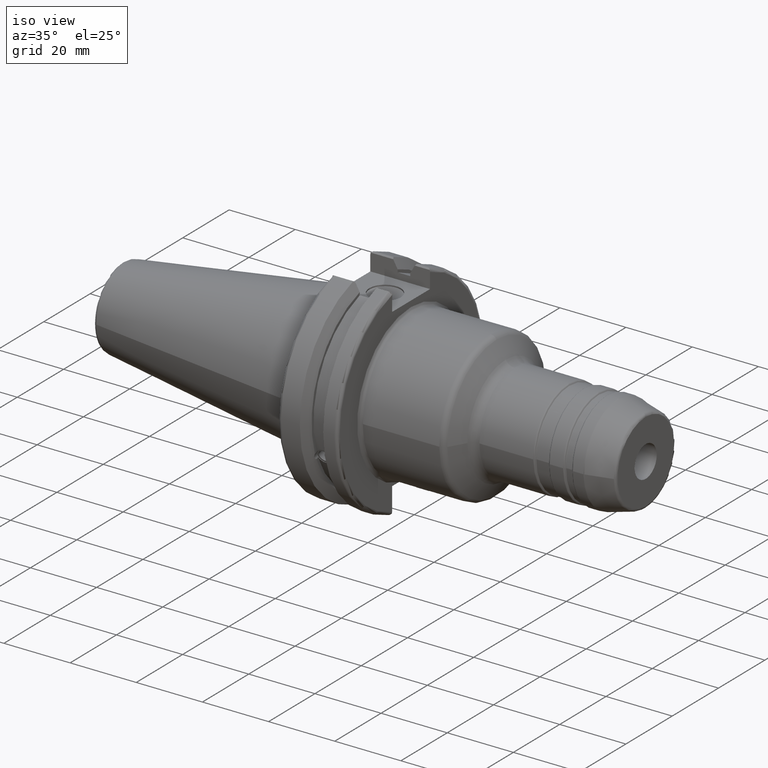
[diagram: clean part render]
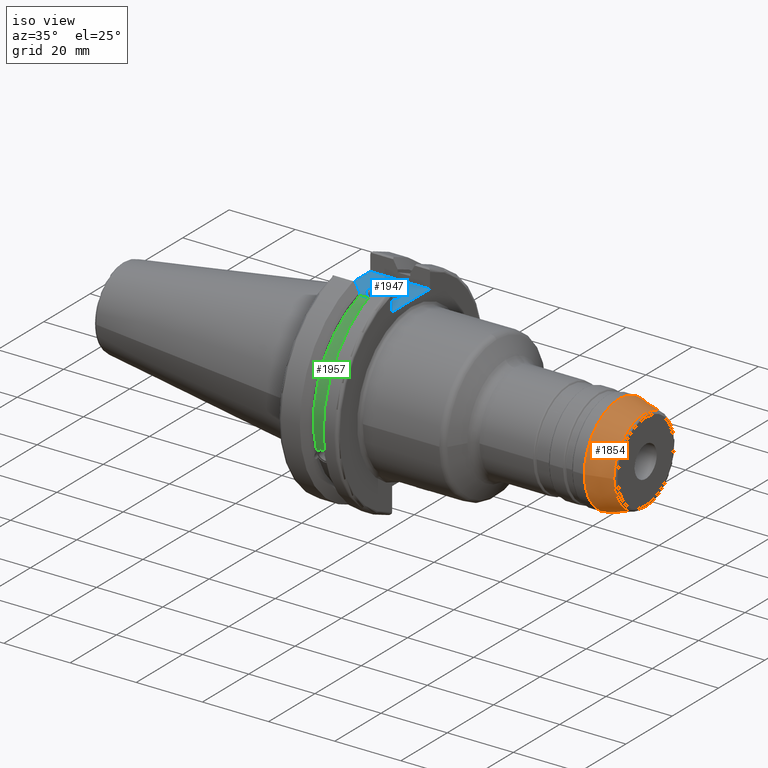
[diagram: same view with three faces highlighted in distinct colors, each labeled with its STEP entity id]
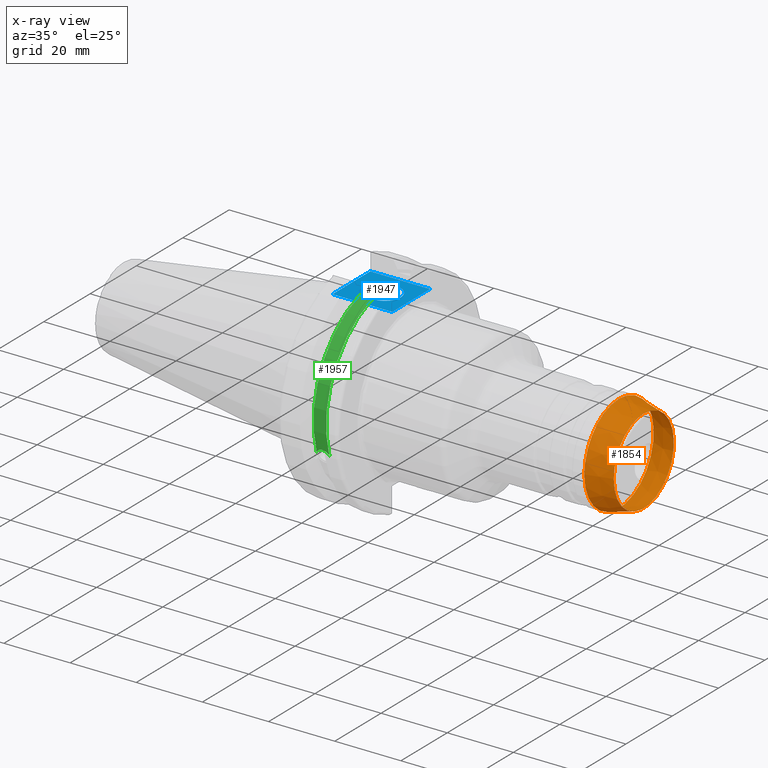
[diagram: x-ray of the same camera — body ghosted, the three highlighted faces saturated]
A machine part, iso view with three faces highlighted in distinct colors.
The next image is the same camera in x-ray (body ghosted, the three faces saturated) — at least one of them is partly hidden behind the body in this view.
Their STEP definitions:

[orange] entity #1854 — the highlighted conical surface has half-angle 15 deg.
#169=LINE('',#2869,#264);
#264=VECTOR('',#2257,13.9);
#359=CONICAL_SURFACE('',#1989,13.9,0.261799387799149);
#380=FACE_OUTER_BOUND('',#488,.T.);
#488=EDGE_LOOP('',(#1243,#1244,#1245,#1246,#1247,#1248));
#612=CIRCLE('',#1987,12.9588790706481);
#613=CIRCLE('',#1988,12.9588790706481);
#614=CIRCLE('',#1990,14.9659258262891);
#615=CIRCLE('',#1991,14.9659258262891);
#744=VERTEX_POINT('',#2862);
#745=VERTEX_POINT('',#2864);
#746=VERTEX_POINT('',#2868);
#747=VERTEX_POINT('',#2870);
#942=EDGE_CURVE('',#744,#745,#612,.T.);
#943=EDGE_CURVE('',#745,#744,#613,.T.);
#944=EDGE_CURVE('',#745,#746,#169,.T.);
#945=EDGE_CURVE('',#747,#746,#614,.T.);
#946=EDGE_CURVE('',#746,#747,#615,.T.);
#1243=ORIENTED_EDGE('',*,*,#943,.F.);
#1244=ORIENTED_EDGE('',*,*,#944,.T.);
#1245=ORIENTED_EDGE('',*,*,#945,.F.);
#1246=ORIENTED_EDGE('',*,*,#946,.F.);
#1247=ORIENTED_EDGE('',*,*,#944,.F.);
#1248=ORIENTED_EDGE('',*,*,#942,.F.);
#1854=ADVANCED_FACE('',(#380),#359,.T.);
#1987=AXIS2_PLACEMENT_3D('',#2865,#2251,#2252);
#1988=AXIS2_PLACEMENT_3D('',#2866,#2253,#2254);
#1989=AXIS2_PLACEMENT_3D('',#2867,#2255,#2256);
#1990=AXIS2_PLACEMENT_3D('',#2871,#2258,#2259);
#1991=AXIS2_PLACEMENT_3D('',#2872,#2260,#2261);
#2251=DIRECTION('center_axis',(1.,0.,0.));
#2252=DIRECTION('ref_axis',(0.,-1.,3.06161699786838E-17));
#2253=DIRECTION('center_axis',(1.,0.,0.));
#2254=DIRECTION('ref_axis',(0.,-1.,3.06161699786838E-17));
#2255=DIRECTION('center_axis',(-1.,0.,0.));
#2256=DIRECTION('ref_axis',(0.,1.,0.));
#2257=DIRECTION('',(-0.965925826289069,-0.25881904510252,-3.16961915143176E-17));
#2258=DIRECTION('center_axis',(-1.,0.,0.));
#2259=DIRECTION('ref_axis',(0.,-1.,3.06161699786838E-17));
#2260=DIRECTION('center_axis',(-1.,0.,0.));
#2261=DIRECTION('ref_axis',(0.,-1.,3.06161699786838E-17));
#2862=CARTESIAN_POINT('',(89.407055236082,-1.58700497744068E-15,12.9588790706481));
#2864=CARTESIAN_POINT('',(89.407055236082,-12.9588790706481,-1.58700497744068E-15));
#2865=CARTESIAN_POINT('Origin',(89.407055236082,0.,-1.98375622180085E-15));
#2866=CARTESIAN_POINT('Origin',(89.407055236082,0.,-1.98375622180085E-15));
#2867=CARTESIAN_POINT('Origin',(85.8947441116742,0.,0.));
#2868=CARTESIAN_POINT('',(81.9166547708636,-14.9659258262891,-1.83279731594416E-15));
#2869=CARTESIAN_POINT('',(85.8947441116742,-13.9,-1.70225905081482E-15));
#2870=CARTESIAN_POINT('',(81.9166547708636,-1.83279731594416E-15,14.9659258262891));
#2871=CARTESIAN_POINT('Origin',(81.9166547708636,0.,-2.2909966449302E-15));
#2872=CARTESIAN_POINT('Origin',(81.9166547708636,0.,-2.2909966449302E-15));

[blue] entity #1947 — the highlighted planar face has unit normal (0, 0, 1).
#132=FACE_BOUND('',#594,.T.);
#164=PLANE('',#2217);
#219=LINE('',#3528,#314);
#229=LINE('',#3559,#324);
#231=LINE('',#3602,#326);
#242=LINE('',#3664,#337);
#314=VECTOR('',#2665,10.);
#324=VECTOR('',#2679,10.);
#326=VECTOR('',#2689,10.);
#337=VECTOR('',#2710,10.);
#473=FACE_OUTER_BOUND('',#593,.T.);
#593=EDGE_LOOP('',(#1774,#1775,#1776,#1777));
#594=EDGE_LOOP('',(#1778));
#727=CIRCLE('',#2208,4.7625);
#883=VERTEX_POINT('',#3525);
#884=VERTEX_POINT('',#3527);
#894=VERTEX_POINT('',#3557);
#900=VERTEX_POINT('',#3601);
#931=VERTEX_POINT('',#3760);
#1140=EDGE_CURVE('',#883,#884,#219,.T.);
#1153=EDGE_CURVE('',#883,#894,#229,.T.);
#1161=EDGE_CURVE('',#900,#884,#231,.T.);
#1180=EDGE_CURVE('',#900,#894,#242,.T.);
#1214=EDGE_CURVE('',#931,#931,#727,.T.);
#1774=ORIENTED_EDGE('',*,*,#1140,.F.);
#1775=ORIENTED_EDGE('',*,*,#1153,.T.);
#1776=ORIENTED_EDGE('',*,*,#1180,.F.);
#1777=ORIENTED_EDGE('',*,*,#1161,.T.);
#1778=ORIENTED_EDGE('',*,*,#1214,.T.);
#1947=ADVANCED_FACE('',(#473,#132),#164,.T.);
#2208=AXIS2_PLACEMENT_3D('',#3761,#2782,#2783);
#2217=AXIS2_PLACEMENT_3D('',#3780,#2802,#2803);
#2665=DIRECTION('',(0.,-1.,0.));
#2679=DIRECTION('',(-1.,0.,0.));
#2689=DIRECTION('',(1.,-1.16558847729675E-16,0.));
#2710=DIRECTION('',(0.,1.,0.));
#2782=DIRECTION('center_axis',(0.,0.,-1.));
#2783=DIRECTION('ref_axis',(1.,0.,0.));
#2802=DIRECTION('center_axis',(0.,0.,1.));
#2803=DIRECTION('ref_axis',(1.,0.,0.));
#3525=CARTESIAN_POINT('',(19.05,8.19,25.));
#3527=CARTESIAN_POINT('',(19.05,-8.19,25.));
#3528=CARTESIAN_POINT('',(19.05,0.,25.));
#3557=CARTESIAN_POINT('',(1.,8.19,25.));
#3559=CARTESIAN_POINT('',(20.05,8.19,25.));
#3601=CARTESIAN_POINT('',(1.,-8.19,25.));
#3602=CARTESIAN_POINT('',(1.,-8.19,25.));
#3664=CARTESIAN_POINT('',(1.,15.875,25.));
#3760=CARTESIAN_POINT('',(6.4135,-5.83238038093927E-16,25.));
#3761=CARTESIAN_POINT('Origin',(11.176,0.,25.));
#3780=CARTESIAN_POINT('Origin',(14.62,0.,25.));

[green] entity #1957 — the highlighted cylindrical surface (partial cylindrical patch) has radius 28.15 mm, axis along (1, 0, 0).
#59=B_SPLINE_CURVE_WITH_KNOTS('',3,(#3195,#3196,#3197,#3198,#3199,#3200,
#3201,#3202,#3203,#3204,#3205,#3206,#3207,#3208),.UNSPECIFIED.,.F.,.F.,
(4,2,2,2,2,2,4),(0.401639126382403,0.474814416953736,0.553950208498303,
0.633086000042871,0.712221791587438,0.791357583132005,0.864532873703335),
 .UNSPECIFIED.);
#118=CYLINDRICAL_SURFACE('',#2237,28.15);
#235=LINE('',#3621,#330);
#330=VECTOR('',#2693,10.);
#483=FACE_OUTER_BOUND('',#605,.T.);
#605=EDGE_LOOP('',(#1820,#1821,#1822,#1823));
#740=CIRCLE('',#2236,28.15);
#741=CIRCLE('',#2238,28.15);
#821=VERTEX_POINT('',#3192);
#822=VERTEX_POINT('',#3194);
#905=VERTEX_POINT('',#3618);
#906=VERTEX_POINT('',#3620);
#1055=EDGE_CURVE('',#822,#821,#59,.T.);
#1167=EDGE_CURVE('',#906,#905,#235,.T.);
#1234=EDGE_CURVE('',#905,#822,#740,.T.);
#1235=EDGE_CURVE('',#906,#821,#741,.T.);
#1820=ORIENTED_EDGE('',*,*,#1055,.T.);
#1821=ORIENTED_EDGE('',*,*,#1235,.F.);
#1822=ORIENTED_EDGE('',*,*,#1167,.T.);
#1823=ORIENTED_EDGE('',*,*,#1234,.T.);
#1957=ADVANCED_FACE('',(#483),#118,.T.);
#2236=AXIS2_PLACEMENT_3D('',#3807,#2843,#2844);
#2237=AXIS2_PLACEMENT_3D('',#3808,#2845,#2846);
#2238=AXIS2_PLACEMENT_3D('',#3809,#2847,#2848);
#2693=DIRECTION('',(-1.,0.,0.));
#2843=DIRECTION('center_axis',(1.,0.,0.));
#2844=DIRECTION('ref_axis',(0.,0.,-1.));
#2845=DIRECTION('center_axis',(1.,0.,0.));
#2846=DIRECTION('ref_axis',(0.,-0.887654187951484,0.46051063246378));
#2847=DIRECTION('center_axis',(1.,0.,0.));
#2848=DIRECTION('ref_axis',(0.,0.,-1.));
#3192=CARTESIAN_POINT('',(13.091,-26.734714844398,-8.81348524641209));
#3194=CARTESIAN_POINT('',(9.261,-26.734714844398,-8.81348524641212));
#3195=CARTESIAN_POINT('Ctrl Pts',(9.261,-26.734714844398,-8.81348524641212));
#3196=CARTESIAN_POINT('Ctrl Pts',(9.36723057097183,-26.8086519721597,-8.58920529678291));
#3197=CARTESIAN_POINT('Ctrl Pts',(9.5187201377051,-26.8729987454904,-8.38416529997369));
#3198=CARTESIAN_POINT('Ctrl Pts',(9.87747062657411,-26.9778908791383,-8.04056861831091));
#3199=CARTESIAN_POINT('Ctrl Pts',(10.1135450112988,-27.0233016799732,-7.88512567185902));
#3200=CARTESIAN_POINT('Ctrl Pts',(10.6309125426388,-27.0826966800569,-7.67864448400039));
#3201=CARTESIAN_POINT('Ctrl Pts',(10.9122140281848,-27.0968804077294,-7.62768458768512));
#3202=CARTESIAN_POINT('Ctrl Pts',(11.4397859718152,-27.0968804077294,-7.62768458768512));
#3203=CARTESIAN_POINT('Ctrl Pts',(11.7210874573612,-27.0826966800569,-7.6786444840004));
#3204=CARTESIAN_POINT('Ctrl Pts',(12.2384549887012,-27.0233016799732,-7.88512567185902));
#3205=CARTESIAN_POINT('Ctrl Pts',(12.4745293734259,-26.9778908791383,-8.04056861831091));
#3206=CARTESIAN_POINT('Ctrl Pts',(12.8332798622949,-26.8729987454904,-8.38416529997369));
#3207=CARTESIAN_POINT('Ctrl Pts',(12.9847694290282,-26.8086519721597,-8.58920529678289));
#3208=CARTESIAN_POINT('Ctrl Pts',(13.091,-26.734714844398,-8.81348524641209));
#3618=CARTESIAN_POINT('',(9.261,-8.19,26.932255754021));
#3620=CARTESIAN_POINT('',(13.091,-8.19,26.932255754021));
#3621=CARTESIAN_POINT('',(11.176,-8.19,26.932255754021));
#3807=CARTESIAN_POINT('Origin',(9.261,0.,0.));
#3808=CARTESIAN_POINT('Origin',(11.176,0.,0.));
#3809=CARTESIAN_POINT('Origin',(13.091,0.,0.));